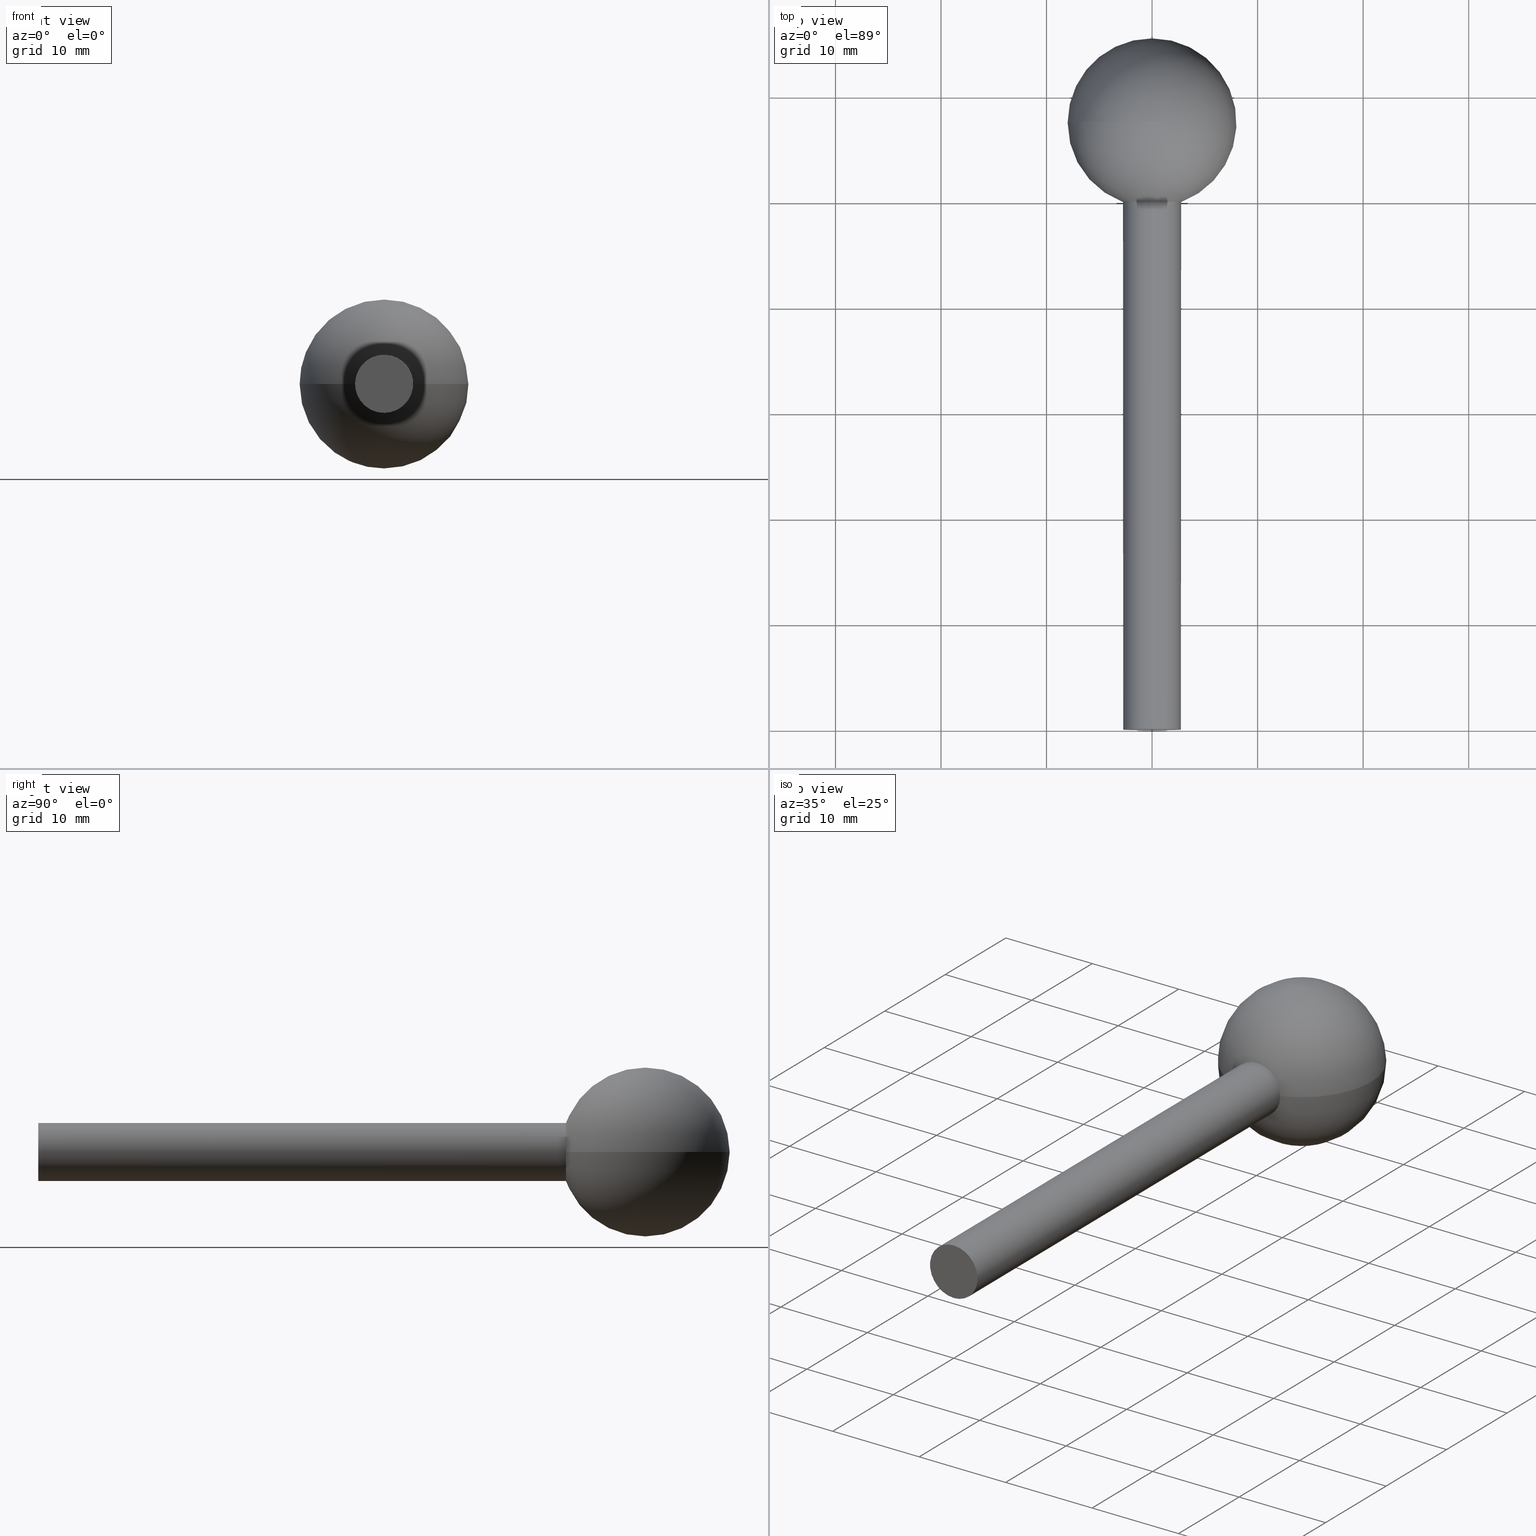
[diagram: canonical four-view strip — front | top / right | iso, engineering-drawing reading convention]
A machine part, canonical four-view strip (front | top / right | iso — engineering-drawing reading convention). The complete STEP part file that produces these views, byte-faithful:
ISO-10303-21;
HEADER;
FILE_DESCRIPTION (( 'STEP AP203' ),
    '1' );
FILE_NAME ('3503.step',
    '2015-09-17T14:56:48',
    ( '' ),
    ( '' ),
    'SwSTEP 2.0',
    'SolidWorks 2015',
    '' );
FILE_SCHEMA (( 'CONFIG_CONTROL_DESIGN' ));
ENDSEC;

DATA;
#1 = CC_DESIGN_DATE_AND_TIME_ASSIGNMENT ( #111, #44, ( #7 ) ) ;
#2 = EDGE_CURVE ( 'NONE', #22, #171, #21, .T. ) ;
#3 = ADVANCED_FACE ( 'NONE', ( #18 ), #114, .T. ) ;
#4 = ORIENTED_EDGE ( 'NONE', *, *, #162, .T. ) ;
#5 = DESIGN_CONTEXT ( 'detailed design', #68, 'design' ) ;
#6 = CC_DESIGN_PERSON_AND_ORGANIZATION_ASSIGNMENT ( #119, #49, ( #7 ) ) ;
#7 = SECURITY_CLASSIFICATION ( '', '', #51 ) ;
#8 = VERTEX_POINT ( 'NONE', #91 ) ;
#9 = MANIFOLD_SOLID_BREP ( 'Rotation1', #37 ) ;
#10 = ORIENTED_EDGE ( 'NONE', *, *, #58, .T. ) ;
#11 = CC_DESIGN_PERSON_AND_ORGANIZATION_ASSIGNMENT ( #121, #52, ( #27 ) ) ;
#12 = ADVANCED_FACE ( 'NONE', ( #137 ), #84, .T. ) ;
#13 = CC_DESIGN_PERSON_AND_ORGANIZATION_ASSIGNMENT ( #123, #54, ( #27 ) ) ;
#14 = EDGE_CURVE ( 'NONE', #164, #171, #85, .T. ) ;
#15 = CC_DESIGN_APPROVAL ( #24, ( #27 ) ) ;
#16 = EDGE_LOOP ( 'NONE', ( #221, #36, #200, #35 ) ) ;
#17 = ADVANCED_BREP_SHAPE_REPRESENTATION ( '3503', ( #9, #112 ), #179 ) ;
#18 = FACE_OUTER_BOUND ( 'NONE', #16, .T. ) ;
#19 = EDGE_CURVE ( 'NONE', #145, #122, #160, .T. ) ;
#20 = AXIS2_PLACEMENT_3D ( 'NONE', #214, #100, #71 ) ;
#21 = LINE ( 'NONE', #186, #174 ) ;
#22 = VERTEX_POINT ( 'NONE', #219 ) ;
#23 = AXIS2_PLACEMENT_3D ( 'NONE', #188, #184, #180 ) ;
#24 = APPROVAL ( #59, 'UNSPECIFIED' ) ;
#25 = ORIENTED_EDGE ( 'NONE', *, *, #48, .F. ) ;
#26 = ORIENTED_EDGE ( 'NONE', *, *, #162, .F. ) ;
#27 = PRODUCT_DEFINITION_FORMATION_WITH_SPECIFIED_SOURCE ( 'ANY', '', #31, .NOT_KNOWN. ) ;
#28 = ADVANCED_FACE ( 'NONE', ( #79 ), #211, .T. ) ;
#29 = VERTEX_POINT ( 'NONE', #218 ) ;
#30 = EDGE_LOOP ( 'NONE', ( #163, #202, #32, #26 ) ) ;
#31 = PRODUCT ( '3503', '3503', '', ( #72 ) ) ;
#32 = ORIENTED_EDGE ( 'NONE', *, *, #19, .F. ) ;
#33 = AXIS2_PLACEMENT_3D ( 'NONE', #143, #192, #181 ) ;
#34 = ORIENTED_EDGE ( 'NONE', *, *, #158, .T. ) ;
#35 = ORIENTED_EDGE ( 'NONE', *, *, #177, .F. ) ;
#36 = ORIENTED_EDGE ( 'NONE', *, *, #149, .T. ) ;
#37 = CLOSED_SHELL ( 'NONE', ( #28, #3, #41, #206, #12 ) ) ;
#38 = CC_DESIGN_DATE_AND_TIME_ASSIGNMENT ( #139, #87, ( #83 ) ) ;
#39 = ORIENTED_EDGE ( 'NONE', *, *, #177, .T. ) ;
#40 = CIRCLE ( 'NONE', #55, 8.000000000000000000 ) ;
#41 = ADVANCED_FACE ( 'NONE', ( #117 ), #213, .F. ) ;
#42 = CC_DESIGN_PERSON_AND_ORGANIZATION_ASSIGNMENT ( #152, #61, ( #83 ) ) ;
#43 = APPROVAL_STATUS ( 'not_yet_approved' ) ;
#44 = DATE_TIME_ROLE ( 'classification_date' ) ;
#45 = ORIENTED_EDGE ( 'NONE', *, *, #158, .F. ) ;
#46 = AXIS2_PLACEMENT_3D ( 'NONE', #220, #196, #74 ) ;
#47 = AXIS2_PLACEMENT_3D ( 'NONE', #175, #168, #157 ) ;
#48 = EDGE_CURVE ( 'NONE', #145, #164, #78, .T. ) ;
#49 = PERSON_AND_ORGANIZATION_ROLE ( 'classification_officer' ) ;
#50 = ORIENTED_EDGE ( 'NONE', *, *, #14, .T. ) ;
#51 = SECURITY_CLASSIFICATION_LEVEL ( 'unclassified' ) ;
#52 = PERSON_AND_ORGANIZATION_ROLE ( 'design_supplier' ) ;
#53 = UNCERTAINTY_MEASURE_WITH_UNIT (LENGTH_MEASURE( 1.000000000000000100E-005 ), #104, 'distance_accuracy_value', 'NONE');
#54 = PERSON_AND_ORGANIZATION_ROLE ( 'creator' ) ;
#55 = AXIS2_PLACEMENT_3D ( 'NONE', #154, #150, #148 ) ;
#56 = APPROVAL_ROLE ( '' ) ;
#57 = APPROVAL ( #43, 'UNSPECIFIED' ) ;
#58 = EDGE_CURVE ( 'NONE', #22, #29, #193, .T. ) ;
#59 = APPROVAL_STATUS ( 'not_yet_approved' ) ;
#60 = CC_DESIGN_APPROVAL ( #64, ( #83 ) ) ;
#61 = PERSON_AND_ORGANIZATION_ROLE ( 'creator' ) ;
#62 = APPROVAL_ROLE ( '' ) ;
#63 = APPROVAL_STATUS ( 'not_yet_approved' ) ;
#64 = APPROVAL ( #63, 'UNSPECIFIED' ) ;
#65 = AXIS2_PLACEMENT_3D ( 'NONE', #108, #132, #185 ) ;
#66 = APPLICATION_PROTOCOL_DEFINITION ( 'international standard', 'config_control_design', 1994, #68 ) ;
#67 = PERSON ( 'UNSPECIFIED', 'UNSPECIFIED', 'UNSPECIFIED', ('UNSPECIFIED'), ('UNSPECIFIED'), ('UNSPECIFIED') ) ;
#68 = APPLICATION_CONTEXT ( 'configuration controlled 3d designs of mechanical parts and assemblies' ) ;
#69 = PERSON_AND_ORGANIZATION_ROLE ( 'design_owner' ) ;
#70 = DIRECTION ( 'NONE',  ( -0.0000000000000000000, -1.000000000000000000, -0.0000000000000000000 ) ) ;
#71 = DIRECTION ( 'NONE',  ( 0.0000000000000000000, 0.0000000000000000000, -1.000000000000000000 ) ) ;
#72 = MECHANICAL_CONTEXT ( 'NONE', #75, 'mechanical' ) ;
#73 = DIRECTION ( 'NONE',  ( 1.000000000000000000, 0.0000000000000000000, 0.0000000000000000000 ) ) ;
#74 = DIRECTION ( 'NONE',  ( 0.0000000000000000000, 0.0000000000000000000, -1.000000000000000000 ) ) ;
#75 = APPLICATION_CONTEXT ( 'configuration controlled 3d designs of mechanical parts and assemblies' ) ;
#76 = APPLICATION_PROTOCOL_DEFINITION ( 'international standard', 'config_control_design', 1994, #75 ) ;
#77 =( NAMED_UNIT ( * ) SI_UNIT ( $, .STERADIAN. ) SOLID_ANGLE_UNIT ( ) );
#78 = LINE ( 'NONE', #201, #82 ) ;
#79 = FACE_OUTER_BOUND ( 'NONE', #197, .T. ) ;
#80 = DIRECTION ( 'NONE',  ( -0.0000000000000000000, -1.000000000000000000, -0.0000000000000000000 ) ) ;
#81 = AXIS2_PLACEMENT_3D ( 'NONE', #207, #205, #204 ) ;
#82 = VECTOR ( 'NONE', #210, 1000.000000000000000 ) ;
#83 = PRODUCT_DEFINITION ( 'UNKNOWN', '', #27, #5 ) ;
#84 = CYLINDRICAL_SURFACE ( 'NONE', #33, 2.750000000000001300 ) ;
#85 = CIRCLE ( 'NONE', #46, 2.750000000000000000 ) ;
#86 = AXIS2_PLACEMENT_3D ( 'NONE', #105, #70, #182 ) ;
#87 = DATE_TIME_ROLE ( 'creation_date' ) ;
#88 = APPROVAL_DATE_TIME ( #89, #57 ) ;
#89 = DATE_AND_TIME ( #95, #102 ) ;
#90 =( NAMED_UNIT ( * ) PLANE_ANGLE_UNIT ( ) SI_UNIT ( $, .RADIAN. ) );
#91 = CARTESIAN_POINT ( 'NONE',  ( -4.898587196589412800E-016, 65.51248960065837000, 0.0000000000000000000 ) ) ;
#92 = CARTESIAN_POINT ( 'NONE',  ( 0.0000000000000000000, 0.0000000000000000000, 0.0000000000000000000 ) ) ;
#93 = CC_DESIGN_PERSON_AND_ORGANIZATION_ASSIGNMENT ( #170, #69, ( #31 ) ) ;
#94 = DIRECTION ( 'NONE',  ( 0.0000000000000000000, 0.0000000000000000000, 1.000000000000000000 ) ) ;
#95 = CALENDAR_DATE ( 2015, 17, 9 ) ;
#96 = DIRECTION ( 'NONE',  ( -1.000000000000000000, 0.0000000000000000000, 0.0000000000000000000 ) ) ;
#97 = DIRECTION ( 'NONE',  ( 0.0000000000000000000, 0.0000000000000000000, -1.000000000000000000 ) ) ;
#98 = DIRECTION ( 'NONE',  ( -0.0000000000000000000, -1.000000000000000000, -0.0000000000000000000 ) ) ;
#99 = CARTESIAN_POINT ( 'NONE',  ( 0.0000000000000000000, 50.00000000000000000, 0.0000000000000000000 ) ) ;
#100 = DIRECTION ( 'NONE',  ( -0.0000000000000000000, -1.000000000000000000, -0.0000000000000000000 ) ) ;
#101 = DIRECTION ( 'NONE',  ( -0.0000000000000000000, -0.0000000000000000000, -1.000000000000000000 ) ) ;
#102 = LOCAL_TIME ( 16, 56, 48.00000000000000000, #103 ) ;
#103 = COORDINATED_UNIVERSAL_TIME_OFFSET ( 1, 0, .AHEAD. ) ;
#104 =( LENGTH_UNIT ( ) NAMED_UNIT ( * ) SI_UNIT ( .MILLI., .METRE. ) );
#105 = CARTESIAN_POINT ( 'NONE',  ( 0.0000000000000000000, 50.00000000000000000, 0.0000000000000000000 ) ) ;
#106 = APPROVAL_ROLE ( '' ) ;
#107 = DIRECTION ( 'NONE',  ( 0.0000000000000000000, 0.0000000000000000000, -1.000000000000000000 ) ) ;
#108 = CARTESIAN_POINT ( 'NONE',  ( 0.0000000000000000000, 57.51248960065836300, 0.0000000000000000000 ) ) ;
#109 = APPROVAL_PERSON_ORGANIZATION ( #110, #57, #106 ) ;
#110 = PERSON_AND_ORGANIZATION ( #67, #172 ) ;
#111 = DATE_AND_TIME ( #113, #116 ) ;
#112 = AXIS2_PLACEMENT_3D ( 'NONE', #92, #94, #73 ) ;
#113 = CALENDAR_DATE ( 2015, 17, 9 ) ;
#114 = SPHERICAL_SURFACE ( 'NONE', #65, 8.000000000000000000 ) ;
#115 = PRODUCT_RELATED_PRODUCT_CATEGORY ( 'detail', '', ( #31 ) ) ;
#116 = LOCAL_TIME ( 16, 56, 48.00000000000000000, #118 ) ;
#117 = FACE_OUTER_BOUND ( 'NONE', #215, .T. ) ;
#118 = COORDINATED_UNIVERSAL_TIME_OFFSET ( 1, 0, .AHEAD. ) ;
#119 = PERSON_AND_ORGANIZATION ( #67, #172 ) ;
#120 = DIRECTION ( 'NONE',  ( -0.0000000000000000000, -1.000000000000000000, -0.0000000000000000000 ) ) ;
#121 = PERSON_AND_ORGANIZATION ( #67, #172 ) ;
#122 = VERTEX_POINT ( 'NONE', #199 ) ;
#123 = PERSON_AND_ORGANIZATION ( #67, #172 ) ;
#124 = PRODUCT_DEFINITION_SHAPE ( 'NONE', 'NONE',  #83 ) ;
#125 = APPROVAL_DATE_TIME ( #128, #24 ) ;
#126 = CARTESIAN_POINT ( 'NONE',  ( 0.0000000000000000000, 50.00000000000000000, 0.0000000000000000000 ) ) ;
#127 = EDGE_CURVE ( 'NONE', #8, #122, #195, .T. ) ;
#128 = DATE_AND_TIME ( #129, #130 ) ;
#129 = CALENDAR_DATE ( 2015, 17, 9 ) ;
#130 = LOCAL_TIME ( 16, 56, 48.00000000000000000, #133 ) ;
#131 = ORIENTED_EDGE ( 'NONE', *, *, #14, .F. ) ;
#132 = DIRECTION ( 'NONE',  ( -0.0000000000000000000, -0.0000000000000000000, -1.000000000000000000 ) ) ;
#133 = COORDINATED_UNIVERSAL_TIME_OFFSET ( 1, 0, .AHEAD. ) ;
#134 = CARTESIAN_POINT ( 'NONE',  ( 0.0000000000000000000, 57.51248960065836300, 0.0000000000000000000 ) ) ;
#135 = APPROVAL_PERSON_ORGANIZATION ( #136, #24, #56 ) ;
#136 = PERSON_AND_ORGANIZATION ( #67, #172 ) ;
#137 = FACE_OUTER_BOUND ( 'NONE', #151, .T. ) ;
#138 = DIRECTION ( 'NONE',  ( 0.0000000000000000000, 0.0000000000000000000, -1.000000000000000000 ) ) ;
#139 = DATE_AND_TIME ( #141, #144 ) ;
#140 = DIRECTION ( 'NONE',  ( -0.0000000000000000000, -1.000000000000000000, -0.0000000000000000000 ) ) ;
#141 = CALENDAR_DATE ( 2015, 17, 9 ) ;
#142 = CARTESIAN_POINT ( 'NONE',  ( 0.0000000000000000000, -3.367778697655221000E-016, 0.0000000000000000000 ) ) ;
#143 = CARTESIAN_POINT ( 'NONE',  ( 0.0000000000000000000, 0.0000000000000000000, 0.0000000000000000000 ) ) ;
#144 = LOCAL_TIME ( 16, 56, 48.00000000000000000, #146 ) ;
#145 = VERTEX_POINT ( 'NONE', #189 ) ;
#146 = COORDINATED_UNIVERSAL_TIME_OFFSET ( 1, 0, .AHEAD. ) ;
#147 = CARTESIAN_POINT ( 'NONE',  ( 0.0000000000000000000, -3.367778697655221000E-016, -2.750000000000000000 ) ) ;
#148 = DIRECTION ( 'NONE',  ( -1.000000000000000000, 0.0000000000000000000, 1.224646799147353200E-016 ) ) ;
#149 = EDGE_CURVE ( 'NONE', #8, #29, #40, .T. ) ;
#150 = DIRECTION ( 'NONE',  ( -1.224646799147353200E-016, 0.0000000000000000000, -1.000000000000000000 ) ) ;
#151 = EDGE_LOOP ( 'NONE', ( #25, #209, #39, #216, #131 ) ) ;
#152 = PERSON_AND_ORGANIZATION ( #67, #172 ) ;
#153 = ORIENTED_EDGE ( 'NONE', *, *, #2, .F. ) ;
#154 = CARTESIAN_POINT ( 'NONE',  ( 0.0000000000000000000, 57.51248960065836300, 0.0000000000000000000 ) ) ;
#155 = APPROVAL_DATE_TIME ( #156, #64 ) ;
#156 = DATE_AND_TIME ( #159, #161 ) ;
#157 = DIRECTION ( 'NONE',  ( 1.000000000000000000, 0.0000000000000000000, 0.0000000000000000000 ) ) ;
#158 = EDGE_CURVE ( 'NONE', #171, #164, #198, .T. ) ;
#159 = CALENDAR_DATE ( 2015, 17, 9 ) ;
#160 = CIRCLE ( 'NONE', #86, 2.750000000000002700 ) ;
#161 = LOCAL_TIME ( 16, 56, 48.00000000000000000, #165 ) ;
#162 = EDGE_CURVE ( 'NONE', #29, #145, #194, .T. ) ;
#163 = ORIENTED_EDGE ( 'NONE', *, *, #149, .F. ) ;
#164 = VERTEX_POINT ( 'NONE', #178 ) ;
#165 = COORDINATED_UNIVERSAL_TIME_OFFSET ( 1, 0, .AHEAD. ) ;
#166 = APPROVAL_PERSON_ORGANIZATION ( #169, #64, #62 ) ;
#167 = CC_DESIGN_SECURITY_CLASSIFICATION ( #7, ( #27 ) ) ;
#168 = DIRECTION ( 'NONE',  ( -0.0000000000000000000, 0.0000000000000000000, 1.000000000000000000 ) ) ;
#169 = PERSON_AND_ORGANIZATION ( #67, #172 ) ;
#170 = PERSON_AND_ORGANIZATION ( #67, #172 ) ;
#171 = VERTEX_POINT ( 'NONE', #147 ) ;
#172 = ORGANIZATION ( 'UNSPECIFIED', 'UNSPECIFIED', '' ) ;
#173 = SHAPE_DEFINITION_REPRESENTATION ( #124, #17 ) ;
#174 = VECTOR ( 'NONE', #80, 1000.000000000000000 ) ;
#175 = CARTESIAN_POINT ( 'NONE',  ( 0.0000000000000000000, 57.51248960065836300, 0.0000000000000000000 ) ) ;
#176 = AXIS2_PLACEMENT_3D ( 'NONE', #134, #101, #96 ) ;
#177 = EDGE_CURVE ( 'NONE', #122, #22, #190, .T. ) ;
#178 = CARTESIAN_POINT ( 'NONE',  ( 3.367778697655221500E-016, -3.367778697655221000E-016, 2.750000000000000000 ) ) ;
#179 =( GEOMETRIC_REPRESENTATION_CONTEXT ( 3 ) GLOBAL_UNCERTAINTY_ASSIGNED_CONTEXT ( ( #53 ) ) GLOBAL_UNIT_ASSIGNED_CONTEXT ( ( #104, #90, #77 ) ) REPRESENTATION_CONTEXT ( 'NONE', 'WORKASPACE' ) );
#180 = DIRECTION ( 'NONE',  ( 0.0000000000000000000, 0.0000000000000000000, -1.000000000000000000 ) ) ;
#181 = DIRECTION ( 'NONE',  ( 0.0000000000000000000, 0.0000000000000000000, -1.000000000000000000 ) ) ;
#182 = DIRECTION ( 'NONE',  ( 0.0000000000000000000, 0.0000000000000000000, -1.000000000000000000 ) ) ;
#183 = FACE_OUTER_BOUND ( 'NONE', #30, .T. ) ;
#184 = DIRECTION ( 'NONE',  ( -0.0000000000000000000, -1.000000000000000000, -0.0000000000000000000 ) ) ;
#185 = DIRECTION ( 'NONE',  ( -1.000000000000000000, 0.0000000000000000000, 0.0000000000000000000 ) ) ;
#186 = CARTESIAN_POINT ( 'NONE',  ( 0.0000000000000000000, 0.0000000000000000000, -2.750000000000001300 ) ) ;
#187 = AXIS2_PLACEMENT_3D ( 'NONE', #99, #98, #97 ) ;
#188 = CARTESIAN_POINT ( 'NONE',  ( 0.0000000000000000000, 50.00000000000000000, 0.0000000000000000000 ) ) ;
#189 = CARTESIAN_POINT ( 'NONE',  ( 3.367778697655224000E-016, 50.00000000000000000, 2.750000000000002700 ) ) ;
#190 = CIRCLE ( 'NONE', #187, 2.750000000000002700 ) ;
#191 = SPHERICAL_SURFACE ( 'NONE', #176, 8.000000000000000000 ) ;
#192 = DIRECTION ( 'NONE',  ( -0.0000000000000000000, -1.000000000000000000, -0.0000000000000000000 ) ) ;
#193 = CIRCLE ( 'NONE', #23, 2.750000000000002700 ) ;
#194 = CIRCLE ( 'NONE', #208, 2.750000000000002700 ) ;
#195 = CIRCLE ( 'NONE', #47, 8.000000000000000000 ) ;
#196 = DIRECTION ( 'NONE',  ( -0.0000000000000000000, -1.000000000000000000, -0.0000000000000000000 ) ) ;
#197 = EDGE_LOOP ( 'NONE', ( #4, #212, #45, #153, #10 ) ) ;
#198 = CIRCLE ( 'NONE', #217, 2.750000000000000000 ) ;
#199 = CARTESIAN_POINT ( 'NONE',  ( -2.750000000000000000, 50.00000000000000000, 0.0000000000000000000 ) ) ;
#200 = ORIENTED_EDGE ( 'NONE', *, *, #58, .F. ) ;
#201 = CARTESIAN_POINT ( 'NONE',  ( 3.367778697655222500E-016, 0.0000000000000000000, 2.750000000000001300 ) ) ;
#202 = ORIENTED_EDGE ( 'NONE', *, *, #127, .T. ) ;
#203 = CC_DESIGN_APPROVAL ( #57, ( #7 ) ) ;
#204 = DIRECTION ( 'NONE',  ( 0.0000000000000000000, -0.0000000000000000000, 1.000000000000000000 ) ) ;
#205 = DIRECTION ( 'NONE',  ( 0.0000000000000000000, 1.000000000000000000, 0.0000000000000000000 ) ) ;
#206 = ADVANCED_FACE ( 'NONE', ( #183 ), #191, .T. ) ;
#207 = CARTESIAN_POINT ( 'NONE',  ( 0.0000000000000000000, -1.683889348827610500E-016, 0.0000000000000000000 ) ) ;
#208 = AXIS2_PLACEMENT_3D ( 'NONE', #126, #120, #107 ) ;
#209 = ORIENTED_EDGE ( 'NONE', *, *, #19, .T. ) ;
#210 = DIRECTION ( 'NONE',  ( -0.0000000000000000000, -1.000000000000000000, -0.0000000000000000000 ) ) ;
#211 = CYLINDRICAL_SURFACE ( 'NONE', #20, 2.750000000000001300 ) ;
#212 = ORIENTED_EDGE ( 'NONE', *, *, #48, .T. ) ;
#213 = PLANE ( 'NONE',  #81 ) ;
#214 = CARTESIAN_POINT ( 'NONE',  ( 0.0000000000000000000, 0.0000000000000000000, 0.0000000000000000000 ) ) ;
#215 = EDGE_LOOP ( 'NONE', ( #34, #50 ) ) ;
#216 = ORIENTED_EDGE ( 'NONE', *, *, #2, .T. ) ;
#217 = AXIS2_PLACEMENT_3D ( 'NONE', #142, #140, #138 ) ;
#218 = CARTESIAN_POINT ( 'NONE',  ( 2.750000000000000000, 50.00000000000000000, -3.367778697655221500E-016 ) ) ;
#219 = CARTESIAN_POINT ( 'NONE',  ( 0.0000000000000000000, 50.00000000000000000, -2.750000000000002700 ) ) ;
#220 = CARTESIAN_POINT ( 'NONE',  ( 0.0000000000000000000, -3.367778697655221000E-016, 0.0000000000000000000 ) ) ;
#221 = ORIENTED_EDGE ( 'NONE', *, *, #127, .F. ) ;
ENDSEC;
END-ISO-10303-21;
